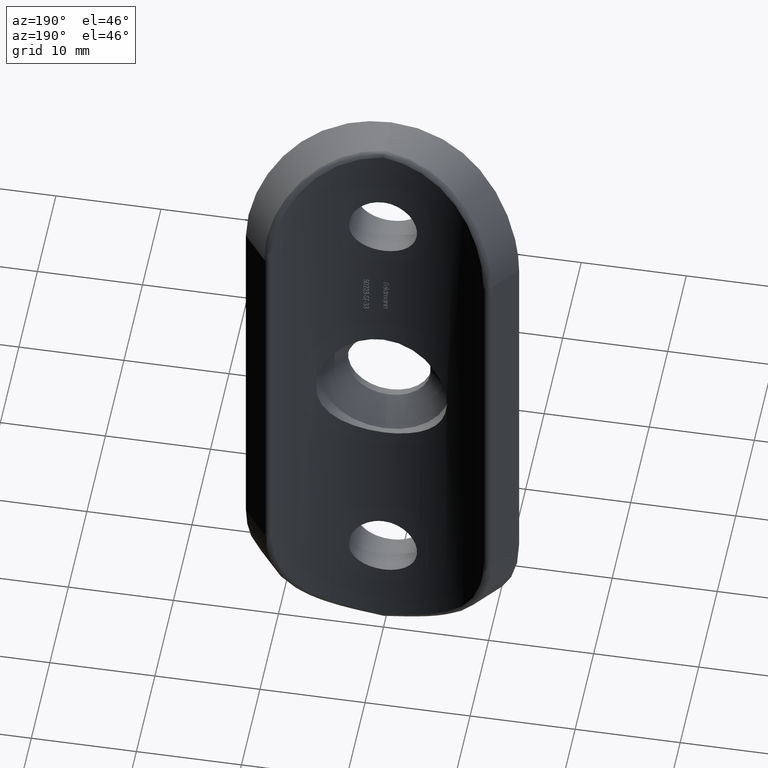
[diagram: clean part render]
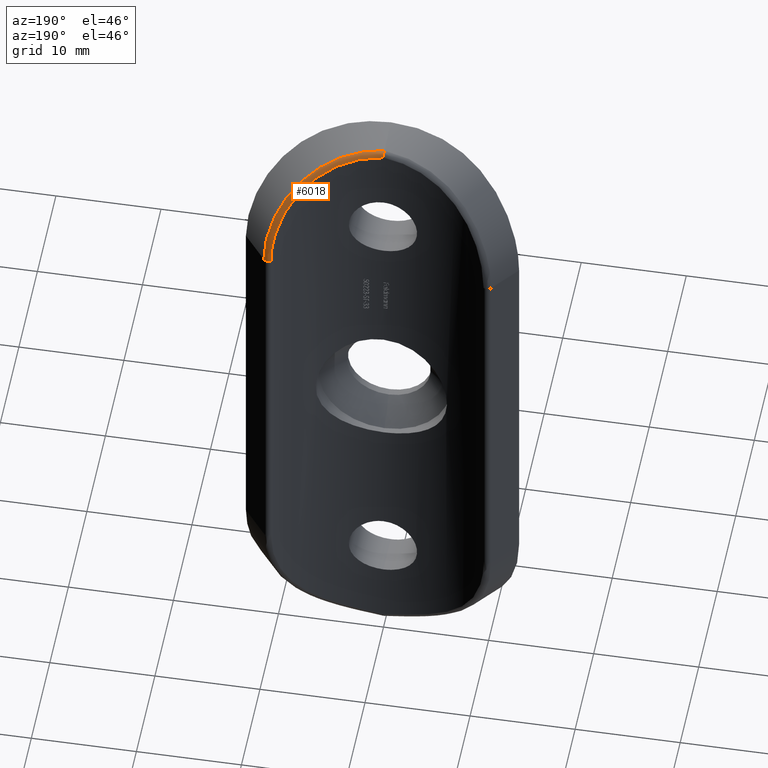
[diagram: same view with one face highlighted and labeled with its STEP entity id]
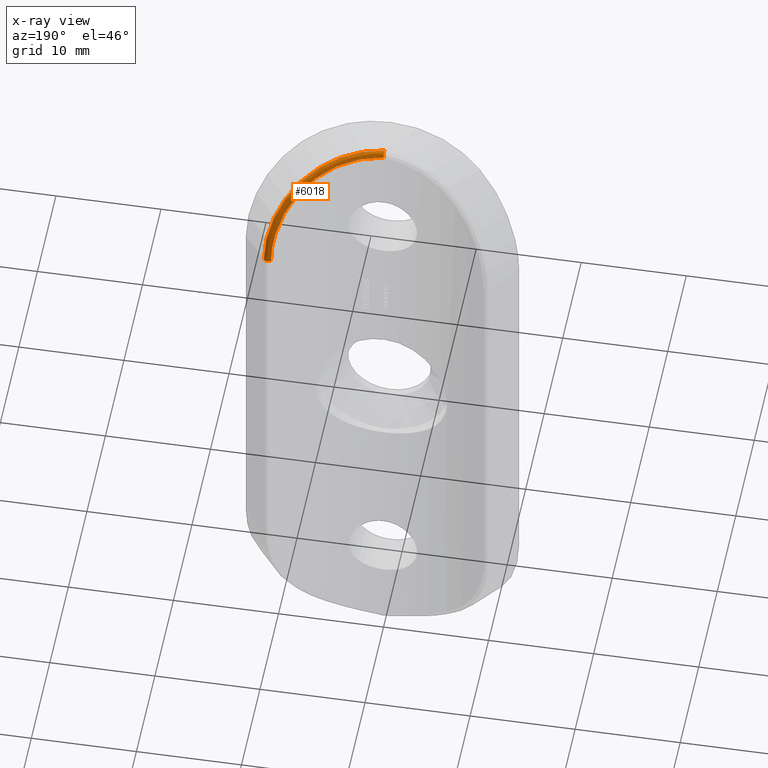
[diagram: x-ray of the same camera — body ghosted, the highlighted face saturated]
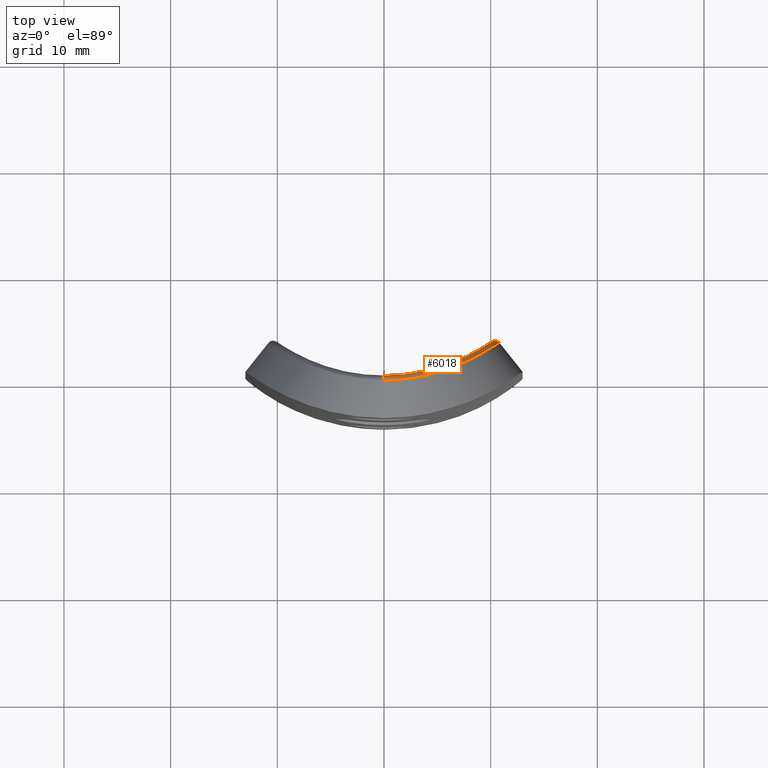
[diagram: same view with one face highlighted and labeled with its STEP entity id]
A machine part, auxiliary view. The second image highlights one B-rep face of the part: STEP entity #6018.
The next image is the same camera in x-ray: the body ghosted, the highlighted face saturated — about 0% of this face is hidden behind the body in this view.
A second angle (top view) of the same face is appended — the face is thin or edge-on in the first view.
In plain terms, the highlighted face is a freeform B-spline surface patch.
Its self-contained STEP definition (entity closure, byte-faithful):
#151 = CARTESIAN_POINT ( 'NONE',  ( 10.81325278671688700, 3.291015370989069000, 19.30497645946644500 ) ) ;
#205 = CARTESIAN_POINT ( 'NONE',  ( 6.920154379201439300, 1.023490903974265900, 28.32955755852735500 ) ) ;
#254 = CARTESIAN_POINT ( 'NONE',  ( 5.056518827220593000, 0.3499715371976212500, 29.66767282546401700 ) ) ;
#283 = CARTESIAN_POINT ( 'NONE',  ( 10.12198592462095600, 3.378997775155144500, 18.50000000000000400 ) ) ;
#303 = CARTESIAN_POINT ( 'NONE',  ( 4.720400433272432700, 0.2502373476705178600, 29.85487967771003100 ) ) ;
#317 = CARTESIAN_POINT ( 'NONE',  ( 8.234141121959519100, 1.657444517457094000, 26.85767709123360800 ) ) ;
#455 = CARTESIAN_POINT ( 'NONE',  ( 7.754350745516792800, 1.888271786053461200, 26.46997945896565700 ) ) ;
#564 = CARTESIAN_POINT ( 'NONE',  ( 8.522674774931408200, 2.313076423829261200, 25.24889058835769600 ) ) ;
#855 = CARTESIAN_POINT ( 'NONE',  ( -2.597937439898376000E-015, -0.4467435717366383700, 31.30982976342494000 ) ) ;
#913 = CARTESIAN_POINT ( 'NONE',  ( -2.171602479656851800E-015, -0.3237194835606613800, 31.29656352088514700 ) ) ;
#1046 = CARTESIAN_POINT ( 'NONE',  ( -0.1702742995689399700, 0.0008603583771607265600, 30.83146303272702200 ) ) ;
#1080 = CARTESIAN_POINT ( 'NONE',  ( 10.75540627910053000, 3.246948536607697600, 20.08203606642702300 ) ) ;
#1105 = CARTESIAN_POINT ( 'NONE',  ( 2.959979937965990300, -0.1729961238917510900, 30.64034768497925400 ) ) ;
#1147 = CARTESIAN_POINT ( 'NONE',  ( 10.33766963107329500, 2.944024006175849800, 22.38621379679843300 ) ) ;
#1162 = CARTESIAN_POINT ( 'NONE',  ( 3.685407945601889300, -0.02379341129957424100, 30.36625892325121600 ) ) ;
#1167 = FACE_OUTER_BOUND ( 'NONE', #6744, .T. ) ;
#1180 = CARTESIAN_POINT ( 'NONE',  ( 9.668406360721459000, 3.049465582925267300, 22.27256909958015300 ) ) ;
#1216 = CARTESIAN_POINT ( 'NONE',  ( 2.864804414332085400, 0.2283720103840810300, 30.57086913981259000 ) ) ;
#1393 = CARTESIAN_POINT ( 'NONE',  ( 10.12198592396728400, 3.378997774663978800, 19.27401582640504800 ) ) ;
#1443 = CARTESIAN_POINT ( 'NONE',  ( 8.836255831279014900, 1.987313562921143400, 25.97782790389464200 ) ) ;
#1492 = CARTESIAN_POINT ( 'NONE',  ( 10.22345054453300300, 2.863817567760867300, 22.80644285116602200 ) ) ;
#1509 = CARTESIAN_POINT ( 'NONE',  ( 3.801099899317005500, 0.002709856565700047200, 30.31731089620750900 ) ) ;
#1545 = CARTESIAN_POINT ( 'NONE',  ( 5.332269976822589200, 0.8627062505323146400, 28.84322101272642400 ) ) ;
#1749 = CARTESIAN_POINT ( 'NONE',  ( 0.7457229633567394900, 0.01247728635560349000, 30.68876922061338800 ) ) ;
#1767 = CARTESIAN_POINT ( 'NONE',  ( -4.556471330923205700E-015, 4.615047846176784400E-015, 30.80803666801636400 ) ) ;
#1847 = CARTESIAN_POINT ( 'NONE',  ( 9.007963226666388900, 2.604943733991442300, 24.28472510104709400 ) ) ;
#2100 = CARTESIAN_POINT ( 'NONE',  ( 2.933447312074207800E-012, 2.068454457195001400E-015, 30.93001358093419400 ) ) ;
#2283 = CARTESIAN_POINT ( 'NONE',  ( 1.300917104329638600, 0.03472391313817448800, 30.58802986198054100 ) ) ;
#2319 = CARTESIAN_POINT ( 'NONE',  ( 10.23505599943294300, 2.871902928979813000, 22.76566226678346500 ) ) ;
#2405 = CARTESIAN_POINT ( 'NONE',  ( 10.32817874602930000, 2.937321799343783500, 22.42347186360044700 ) ) ;
#2419 = CARTESIAN_POINT ( 'NONE',  ( 9.883876483705218900, 2.631715138342525700, 23.87722691772918500 ) ) ;
#2444 = CARTESIAN_POINT ( 'NONE',  ( 0.5657260631975562500, -0.006577525628676787600, 30.73396282970994500 ) ) ;
#2526 = CARTESIAN_POINT ( 'NONE',  ( 10.81325278673134900, 3.291015370970933300, 18.50000000000000400 ) ) ;
#2629 = CARTESIAN_POINT ( 'NONE',  ( 10.45309563228252300, 3.624731946680705100, 20.09294135705030000 ) ) ;
#2690 = CARTESIAN_POINT ( 'NONE',  ( 5.848310167937095000, 1.042709693635249300, 28.96950588692877900 ) ) ;
#2705 = CARTESIAN_POINT ( 'NONE',  ( 6.993355885137081200, 1.055335429611859100, 28.26161717247504500 ) ) ;
#2739 = CARTESIAN_POINT ( 'NONE',  ( 8.270840031686955000, 2.167795911508204400, 25.69021913844396800 ) ) ;
#2790 = CARTESIAN_POINT ( 'NONE',  ( 6.024998771972990500, 0.6766017877176397900, 29.03505623143662400 ) ) ;
#2900 = CARTESIAN_POINT ( 'NONE',  ( 7.962761078081456400, 1.998568726242661900, 26.17244299000459400 ) ) ;
#3259 = B_SPLINE_CURVE_WITH_KNOTS ( 'NONE', 3,
 ( #6724, #15343, #1749, #9016, #9121, #10258, #12800, #11534, #7958, #5441, #14049, #455, #2900, #6667, #564, #1847, #11476, #5340, #11686, #13932, #4169, #12750, #15286, #9168 ),
 .UNSPECIFIED., .F., .F.,
 ( 4, 2, 2, 2, 2, 2, 2, 2, 2, 2, 2, 4 ),
 ( 0.0000000000000000000, 0.001130962719615049500, 0.002261925439230099000, 0.004523850878460198100, 0.006785776317690297100, 0.009047701756920396200, 0.01017866447653544900, 0.01130962719615050300, 0.01357155263538061000, 0.01470251535499566200, 0.01583347807461071500, 0.01809540351384082400 ),
 .UNSPECIFIED. ) ;
#3438 = ORIENTED_EDGE ( 'NONE', *, *, #14956, .T. ) ;
#3710 = CARTESIAN_POINT ( 'NONE',  ( 10.12198592462095800, 3.378997775155144500, 18.50000000000000400 ) ) ;
#3789 = DIRECTION ( 'NONE',  ( 1.000000000000000000, 0.0000000000000000000, 0.0000000000000000000 ) ) ;
#3871 = CARTESIAN_POINT ( 'NONE',  ( 10.75427619857044100, 3.246077524186870000, 20.09749010482430300 ) ) ;
#3921 = CARTESIAN_POINT ( 'NONE',  ( 8.453743412148853100, 2.272791871619866700, 25.37448746590331100 ) ) ;
#3925 = B_SPLINE_CURVE_WITH_KNOTS ( 'NONE', 3,
 ( #855, #913, #8312, #11974, #2100, #11926 ),
 .UNSPECIFIED., .F., .F.,
 ( 4, 2, 4 ),
 ( 3.794707603699265500E-019, 0.0003659181673830896600, 0.0007318363347661790000 ),
 .UNSPECIFIED. ) ;
#3968 = CARTESIAN_POINT ( 'NONE',  ( 8.411996351252074800, 1.752160943769947900, 26.61597519465040700 ) ) ;
#4030 = CARTESIAN_POINT ( 'NONE',  ( 7.458067990189533700, 1.267190414305918300, 27.80263950177339500 ) ) ;
#4169 = CARTESIAN_POINT ( 'NONE',  ( 9.912654814677168200, 3.224069730281534900, 21.10132444959513300 ) ) ;
#4966 = CARTESIAN_POINT ( 'NONE',  ( 2.737412035725487400, 0.2081109685111228700, 30.17341123503760200 ) ) ;
#5001 = CARTESIAN_POINT ( 'NONE',  ( -2.597937439898376000E-015, -0.4467435717366383700, 31.30982976342494000 ) ) ;
#5089 = CARTESIAN_POINT ( 'NONE',  ( 6.976948467912995600, 1.503977257786849500, 27.44484567509237000 ) ) ;
#5140 = CARTESIAN_POINT ( 'NONE',  ( 9.569250911676169500, 2.424936653970002800, 24.63734634396780600 ) ) ;
#5156 = CARTESIAN_POINT ( 'NONE',  ( 8.874810467235942500, 2.009469455502231200, 25.91466500015650700 ) ) ;
#5192 = CARTESIAN_POINT ( 'NONE',  ( 5.628651551260522200, 0.9650784544321692200, 28.62986176105120300 ) ) ;
#5204 = CARTESIAN_POINT ( 'NONE',  ( 1.948181270716171200, -0.3152336200101893400, 30.93077029224297200 ) ) ;
#5243 = CARTESIAN_POINT ( 'NONE',  ( 9.298541344923680900, 2.786203570421343900, 24.61150453662915900 ) ) ;
#5340 = CARTESIAN_POINT ( 'NONE',  ( 9.595389920162256600, 2.998365812492522800, 22.55007719834674900 ) ) ;
#5441 = CARTESIAN_POINT ( 'NONE',  ( 6.600083224448394700, 1.335242850766881700, 27.82882534629756700 ) ) ;
#6018 = ADVANCED_FACE ( 'NONE', ( #1167 ), #15216, .T. ) ;
#6034 = CARTESIAN_POINT ( 'NONE',  ( 10.28116900110253700, 3.491707050122228500, 21.26298853632859600 ) ) ;
#6178 = CARTESIAN_POINT ( 'NONE',  ( 0.6648607727073359000, -0.4410943268230899700, 31.22332240222531000 ) ) ;
#6214 = CARTESIAN_POINT ( 'NONE',  ( 3.081347760467121800, -0.1503958083531973800, 30.59770263791105200 ) ) ;
#6311 = CARTESIAN_POINT ( 'NONE',  ( 9.865429158277427400, 2.619421290825076000, 23.92677003878620600 ) ) ;
#6326 = CARTESIAN_POINT ( 'NONE',  ( 0.7868395231680549400, -0.4217079465087671400, 31.18895971245693100 ) ) ;
#6364 = CARTESIAN_POINT ( 'NONE',  ( 7.243769097081203000, 1.624691553842437600, 27.74698774959896900 ) ) ;
#6411 = CARTESIAN_POINT ( 'NONE',  ( 4.399199676245397800, 0.5809471721389855000, 29.41815353591571700 ) ) ;
#6667 = CARTESIAN_POINT ( 'NONE',  ( 8.346506597353013000, 2.210792286257802000, 25.56226487515341700 ) ) ;
#6724 = CARTESIAN_POINT ( 'NONE',  ( -4.556471330923205700E-015, 4.615047846176784400E-015, 30.80803666801636400 ) ) ;
#6744 = EDGE_LOOP ( 'NONE', ( #3438, #12172, #13223, #14461 ) ) ;
#7156 = VERTEX_POINT ( 'NONE', #1767 ) ;
#7157 = VERTEX_POINT ( 'NONE', #11910 ) ;
#7192 = VERTEX_POINT ( 'NONE', #10628 ) ;
#7233 = CARTESIAN_POINT ( 'NONE',  ( 10.81325278673134900, 3.291015370970933300, 18.50000000000000400 ) ) ;
#7272 = CARTESIAN_POINT ( 'NONE',  ( 9.834196199454627400, 3.167112261531356900, 21.53394219886338200 ) ) ;
#7453 = CARTESIAN_POINT ( 'NONE',  ( 4.825879269697543000, 0.2807642902636746100, 29.79759421073650200 ) ) ;
#7488 = CARTESIAN_POINT ( 'NONE',  ( 10.51036055112813700, 3.670818861435670500, 19.30412672985098900 ) ) ;
#7539 = CARTESIAN_POINT ( 'NONE',  ( 6.719587745148081700, 1.382932435438850400, 28.26998476491975500 ) ) ;
#7565 = DIRECTION ( 'NONE',  ( 0.0000000000000000000, -0.0000000000000000000, 1.000000000000000000 ) ) ;
#7588 = CARTESIAN_POINT ( 'NONE',  ( 8.582869354237873300, 2.343404614292985400, 25.94357915096087900 ) ) ;
#7648 = CARTESIAN_POINT ( 'NONE',  ( 4.716141415323881400, 0.6702387320406065800, 29.23814694795537200 ) ) ;
#7958 = CARTESIAN_POINT ( 'NONE',  ( 5.501661426244776700, 0.9126065644254250900, 28.74676221234050600 ) ) ;
#8312 = CARTESIAN_POINT ( 'NONE',  ( -8.275577517794562600E-015, -0.2087632683938588100, 31.23641826399800100 ) ) ;
#8454 = CARTESIAN_POINT ( 'NONE',  ( -0.1127630105563157300, 0.0002791598909341399000, 31.27852685541859400 ) ) ;
#8492 = CARTESIAN_POINT ( 'NONE',  ( 10.58318446594495100, 3.120313476255777400, 21.24161290630413400 ) ) ;
#8528 = CARTESIAN_POINT ( 'NONE',  ( 10.50542401011223100, 3.063671795485754900, 21.65529988678082400 ) ) ;
#8750 = CARTESIAN_POINT ( 'NONE',  ( 10.06687374878457900, 3.337081388666960800, 20.03604817772262700 ) ) ;
#8806 = CARTESIAN_POINT ( 'NONE',  ( 9.934594831053653200, 3.232282931469822300, 22.79521228999549700 ) ) ;
#8858 = CARTESIAN_POINT ( 'NONE',  ( 9.570425809902653600, 2.981053932900907800, 22.64081043374918400 ) ) ;
#8910 = CARTESIAN_POINT ( 'NONE',  ( 3.422654643862415500, 0.3376383876294792300, 29.90986434996787600 ) ) ;
#8921 = CARTESIAN_POINT ( 'NONE',  ( 7.522032440449956800, 1.297400226740585700, 27.73417490612285600 ) ) ;
#8961 = CIRCLE ( 'NONE', #14300, 0.5000000000000004400 ) ;
#9016 = CARTESIAN_POINT ( 'NONE',  ( 1.481062514297368300, 0.06117253351766455100, 30.52910405572965000 ) ) ;
#9121 = CARTESIAN_POINT ( 'NONE',  ( 1.846733640083014300, 0.09762646665172433600, 30.43474698371177600 ) ) ;
#9168 = CARTESIAN_POINT ( 'NONE',  ( 10.12198592462095600, 3.378997775155144500, 18.50000000000000400 ) ) ;
#9689 = CARTESIAN_POINT ( 'NONE',  ( 10.51140021667998200, 3.068001273967809100, 21.62516512265614600 ) ) ;
#9780 = CARTESIAN_POINT ( 'NONE',  ( 10.03668565054376300, 3.307438633750146900, 22.41413421232041600 ) ) ;
#9961 = CARTESIAN_POINT ( 'NONE',  ( 8.459104589948710300, 1.777631885677610100, 26.54932674287762900 ) ) ;
#10055 = CARTESIAN_POINT ( 'NONE',  ( 8.182918402954143700, 1.630654374351810900, 26.92501809093846500 ) ) ;
#10106 = CARTESIAN_POINT ( 'NONE',  ( 9.031299304511454900, 2.100778485241230300, 25.64946696455913900 ) ) ;
#10164 = CARTESIAN_POINT ( 'NONE',  ( 3.573227225697960900, 0.3679029333377174000, 30.29449419355211100 ) ) ;
#10258 = CARTESIAN_POINT ( 'NONE',  ( 2.918874630944272600, 0.2390864958669768600, 30.10809533124733400 ) ) ;
#10628 = CARTESIAN_POINT ( 'NONE',  ( 10.81325278673134900, 3.291015370970933300, 18.50000000000000400 ) ) ;
#10740 = VERTEX_POINT ( 'NONE', #283 ) ;
#10919 = CARTESIAN_POINT ( 'NONE',  ( 9.593368464452536800, 2.440443406201453100, 24.58266391671368800 ) ) ;
#10940 = CARTESIAN_POINT ( 'NONE',  ( 0.6324098689848118800, -0.004766189867351641600, 31.16891046781850600 ) ) ;
#11102 = CARTESIAN_POINT ( 'NONE',  ( -0.1113509854362939600, -0.4480934571586294200, 31.32472155403610300 ) ) ;
#11141 = CARTESIAN_POINT ( 'NONE',  ( 1.562607954736169300, -0.3590787525489974600, 31.02669542825152900 ) ) ;
#11274 = CARTESIAN_POINT ( 'NONE',  ( 5.710305622408264400, 0.5636021547520941900, 29.25694985364504700 ) ) ;
#11337 = CARTESIAN_POINT ( 'NONE',  ( 7.872775487281309400, 1.950559814115725900, 26.30382230246473400 ) ) ;
#11386 = CARTESIAN_POINT ( 'NONE',  ( 8.958007187360758300, 2.573105897379456100, 24.40129456154538400 ) ) ;
#11476 = CARTESIAN_POINT ( 'NONE',  ( 9.274271414462182500, 2.779552271914676800, 23.61007983579746700 ) ) ;
#11534 = CARTESIAN_POINT ( 'NONE',  ( 4.888332787101519200, 0.7109057376614091900, 29.15559705008147200 ) ) ;
#11686 = CARTESIAN_POINT ( 'NONE',  ( 9.688907745390288500, 3.063883457537346800, 22.18928936296726200 ) ) ;
#11910 = CARTESIAN_POINT ( 'NONE',  ( -2.597937439898376000E-015, -0.4467435717366383700, 31.30982976342494000 ) ) ;
#11926 = CARTESIAN_POINT ( 'NONE',  ( -4.556471330923205700E-015, 4.615047846176784400E-015, 30.80803666801636400 ) ) ;
#11974 = CARTESIAN_POINT ( 'NONE',  ( -1.438220869642109700E-014, -0.04603401132574915600, 31.05288523145570100 ) ) ;
#12141 = CARTESIAN_POINT ( 'NONE',  ( 9.065984262955375100, 2.121253853727199000, 25.58827309608812000 ) ) ;
#12172 = ORIENTED_EDGE ( 'NONE', *, *, #12927, .F. ) ;
#12257 = EDGE_CURVE ( 'NONE', #7192, #7157, #15273, .T. ) ;
#12315 = CARTESIAN_POINT ( 'NONE',  ( 1.441213618363126100, -0.3831453118544556100, 31.07155105591961300 ) ) ;
#12401 = CARTESIAN_POINT ( 'NONE',  ( 5.158307885413860200, 0.3815381655267478500, 29.60779361770762800 ) ) ;
#12448 = CARTESIAN_POINT ( 'NONE',  ( 8.169889626969558400, 2.107414113531933500, 26.57531389448112300 ) ) ;
#12499 = CARTESIAN_POINT ( 'NONE',  ( 7.657741951940710800, 1.838490443010191400, 26.60097893343955300 ) ) ;
#12511 = CARTESIAN_POINT ( 'NONE',  ( 5.804277073753965500, 0.5966063912151951000, 29.19240259793339100 ) ) ;
#12551 = CARTESIAN_POINT ( 'NONE',  ( 6.471255699019603300, 1.280634153719786700, 27.95149765232125800 ) ) ;
#12597 = CARTESIAN_POINT ( 'NONE',  ( 9.586339429929024500, 2.983501109312526500, 23.90615105486458700 ) ) ;
#12750 = CARTESIAN_POINT ( 'NONE',  ( 10.06945631784989600, 3.339065383046127400, 20.00008854178766900 ) ) ;
#12800 = CARTESIAN_POINT ( 'NONE',  ( 3.599116538345436700, 0.3753976925234857600, 29.83351066809676800 ) ) ;
#12927 = EDGE_CURVE ( 'NONE', #7156, #10740, #3259, .T. ) ;
#13223 = ORIENTED_EDGE ( 'NONE', *, *, #15399, .F. ) ;
#13310 = CARTESIAN_POINT ( 'NONE',  ( 10.81325278673134900, 3.291015370970932400, 19.29716980078726300 ) ) ;
#13409 = CARTESIAN_POINT ( 'NONE',  ( 9.902658488902520900, 3.216788383884504400, 21.16165602292269900 ) ) ;
#13679 = CARTESIAN_POINT ( 'NONE',  ( 9.235346447690677300, 2.753768703268788100, 23.71804811434611100 ) ) ;
#13694 = CARTESIAN_POINT ( 'NONE',  ( 6.112986192635479400, 0.7093041458289921500, 28.96982297826614800 ) ) ;
#13727 = CARTESIAN_POINT ( 'NONE',  ( 8.772713109572306300, 2.457660370344367400, 25.61824024520332800 ) ) ;
#13781 = CARTESIAN_POINT ( 'NONE',  ( 4.906777291359148300, 0.7255826926428252700, 29.59746754341902900 ) ) ;
#13932 = CARTESIAN_POINT ( 'NONE',  ( 9.847265775228581900, 3.176547642491377200, 21.46576991504872800 ) ) ;
#14049 = CARTESIAN_POINT ( 'NONE',  ( 7.092860794990605700, 1.557619797007125900, 27.31732193726445200 ) ) ;
#14300 = AXIS2_PLACEMENT_3D ( 'NONE', #14961, #7565, #3789 ) ;
#14461 = ORIENTED_EDGE ( 'NONE', *, *, #12257, .F. ) ;
#14654 = CARTESIAN_POINT ( 'NONE',  ( 10.57863874613705400, 3.116991917141257700, 21.26812226384322100 ) ) ;
#14874 = CARTESIAN_POINT ( 'NONE',  ( 10.51036055180890300, 3.670818861980148700, 18.50000000000000000 ) ) ;
#14928 = CARTESIAN_POINT ( 'NONE',  ( 7.946963378024910300, 1.985840522206788700, 26.88128597326357600 ) ) ;
#14956 = EDGE_CURVE ( 'NONE', #7192, #10740, #8961, .T. ) ;
#14961 = CARTESIAN_POINT ( 'NONE',  ( 10.42234159003997700, 2.979264771450548500, 18.50000000000000400 ) ) ;
#14988 = CARTESIAN_POINT ( 'NONE',  ( 5.542156880456471600, 0.9324806301945233200, 29.18968735159210200 ) ) ;
#15035 = CARTESIAN_POINT ( 'NONE',  ( 4.579778438270733600, 0.6295548859780806300, 29.78389970412766300 ) ) ;
#15049 = CARTESIAN_POINT ( 'NONE',  ( 0.3951719370108113200, -0.4407258731421475600, 31.25574721689305200 ) ) ;
#15216 =( BOUNDED_SURFACE ( )  B_SPLINE_SURFACE ( 3, 2, ( 
 ( #3710, #14874, #2526 ),
 ( #1393, #7488, #151 ),
 ( #8750, #2629, #3871 ),
 ( #13409, #6034, #14654 ),
 ( #7272, #15908, #8528 ),
 ( #1180, #9780, #2405 ),
 ( #8858, #8806, #1492 ),
 ( #13679, #12597, #6311 ),
 ( #11386, #5243, #5140 ),
 ( #3921, #13727, #10106 ),
 ( #2739, #7588, #1443 ),
 ( #11337, #12448, #3968 ),
 ( #12499, #14928, #10055 ),
 ( #5089, #6364, #4030 ),
 ( #12551, #7539, #205 ),
 ( #5192, #2690, #2790 ),
 ( #1545, #14988, #11274 ),
 ( #7648, #13781, #254 ),
 ( #6411, #15035, #303 ),
 ( #8910, #10164, #1162 ),
 ( #4966, #1216, #1105 ),
 ( #2283, #15950, #12315 ),
 ( #2444, #10940, #6178 ),
 ( #1046, #8454, #11102 ) ),
 .UNSPECIFIED., .F., .F., .T. ) 
 B_SPLINE_SURFACE_WITH_KNOTS ( ( 4, 2, 2, 2, 2, 2, 2, 2, 2, 2, 2, 4 ),
 ( 3, 3 ),
 ( 0.0000000000000000000, 0.002289601953581583100, 0.003434402930372374700, 0.004579203907163166200, 0.006868805860744749300, 0.008013606837535540400, 0.009158407814326332400, 0.01144800976790791600, 0.01259281074469870800, 0.01373761172148949900, 0.01602721367507108100, 0.01831681562865266500 ),
 ( 0.0000000000000000000, 1.000000000000000000 ),
 .UNSPECIFIED. ) 
 GEOMETRIC_REPRESENTATION_ITEM ( )  RATIONAL_B_SPLINE_SURFACE ( (
 ( 1.000000000000000000, 0.7172232720025323300, 1.000000000000000000),
 ( 1.000000000000000000, 0.7172178968165505700, 1.000000000000000000),
 ( 1.000000000000000000, 0.7186244166122391900, 1.000000000000000000),
 ( 1.000000000000000000, 0.7225000310351461500, 1.000000000000000000),
 ( 1.000000000000000000, 0.7240849017504463700, 1.000000000000000000),
 ( 1.000000000000000000, 0.7277539859927270000, 1.000000000000000000),
 ( 1.000000000000000000, 0.7298510948293067700, 1.000000000000000000),
 ( 1.000000000000000000, 0.7366079396922861100, 1.000000000000000000),
 ( 1.000000000000000000, 0.7417298801623840600, 1.000000000000000000),
 ( 1.000000000000000000, 0.7493937746241765600, 1.000000000000000000),
 ( 1.000000000000000000, 0.7519446449236374400, 1.000000000000000000),
 ( 1.000000000000000000, 0.7568670787457035800, 1.000000000000000000),
 ( 1.000000000000000000, 0.7592314800679828000, 1.000000000000000000),
 ( 1.000000000000000000, 0.7656365837913730000, 1.000000000000000000),
 ( 1.000000000000000000, 0.7690467701978925800, 1.000000000000000000),
 ( 1.000000000000000000, 0.7720144167513016700, 1.000000000000000000),
 ( 1.000000000000000000, 0.7726468596381630400, 1.000000000000000000),
 ( 1.000000000000000000, 0.7730514819022249500, 1.000000000000000000),
 ( 1.000000000000000000, 0.7728254896145290200, 1.000000000000000000),
 ( 1.000000000000000000, 0.7708068797254195000, 1.000000000000000000),
 ( 1.000000000000000000, 0.7676686342806760000, 1.000000000000000000),
 ( 1.000000000000000000, 0.7576498658470709500, 1.000000000000000000),
 ( 1.000000000000000000, 0.7508761609326494200, 1.000000000000000000),
 ( 1.000000000000000000, 0.7427412373925796900, 1.000000000000000000) ) ) 
 REPRESENTATION_ITEM ( '' )  SURFACE ( )  );
#15273 = B_SPLINE_CURVE_WITH_KNOTS ( 'NONE', 3,
 ( #7233, #13310, #1080, #8492, #9689, #1147, #2319, #2419, #10919, #12141, #5156, #9961, #317, #8921, #2705, #13694, #12511, #12401, #7453, #1509, #6214, #5204, #11141, #6326, #15049, #5001 ),
 .UNSPECIFIED., .F., .F.,
 ( 4, 2, 2, 2, 2, 2, 2, 2, 2, 2, 2, 2, 4 ),
 ( 0.0000000000000000000, 0.002357977427969257100, 0.003536966141953890800, 0.004715954855938524600, 0.007073932283907793800, 0.008252920997892432300, 0.009431909711877069900, 0.01178988713984635600, 0.01296887585383099700, 0.01414786456781563600, 0.01650584199578491700, 0.01768483070976955800, 0.01886381942375419500 ),
 .UNSPECIFIED. ) ;
#15286 = CARTESIAN_POINT ( 'NONE',  ( 10.12198592462095800, 3.378997775155143700, 19.25546580223838000 ) ) ;
#15343 = CARTESIAN_POINT ( 'NONE',  ( 0.3744895071534823900, 4.558166633491124700E-015, 30.75458467671060300 ) ) ;
#15399 = EDGE_CURVE ( 'NONE', #7157, #7156, #3925, .T. ) ;
#15908 = CARTESIAN_POINT ( 'NONE',  ( 10.20976218980300000, 3.436998772956981100, 21.64877457385225100 ) ) ;
#15950 = CARTESIAN_POINT ( 'NONE',  ( 1.389573273624086400, 0.04047565808121987600, 31.01049649881861100 ) ) ;